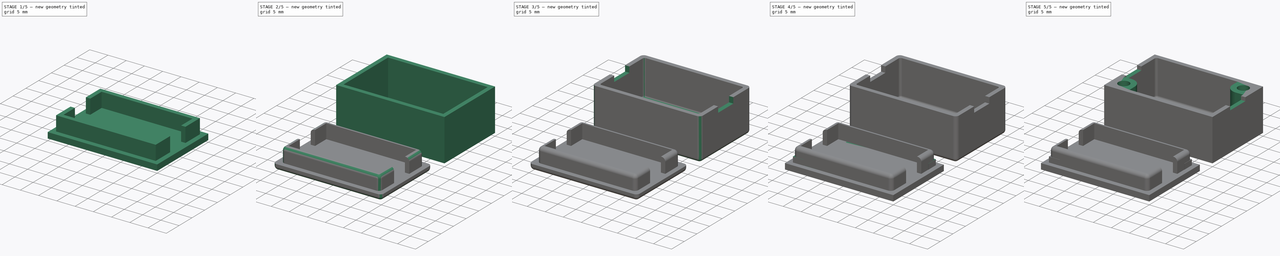
[diagram: build sequence overview — one tinted view per stage of 5, left to right]
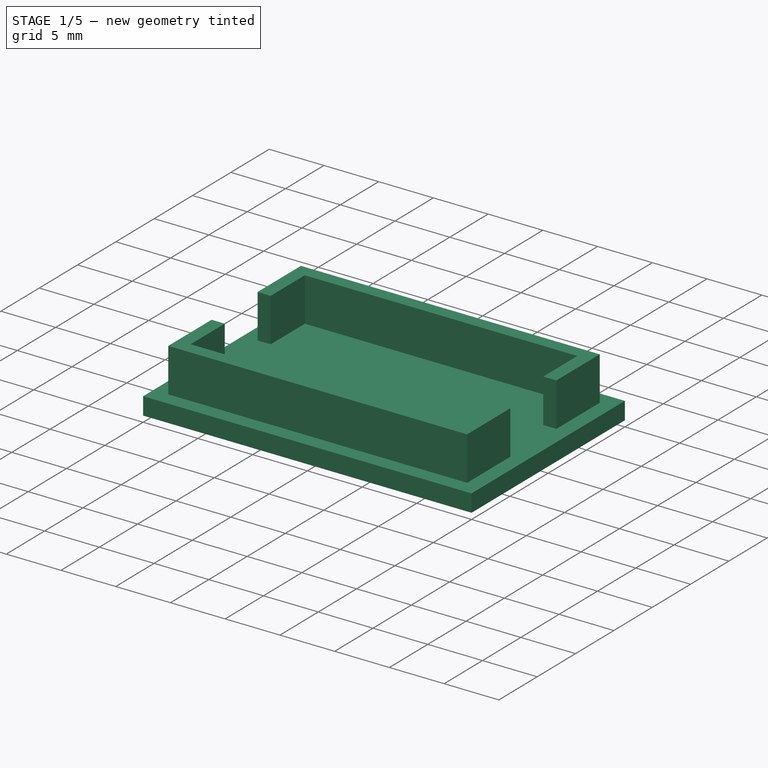
[diagram: stage 1 of 5 — iso view after this stage's code; geometry added in this stage tinted green]
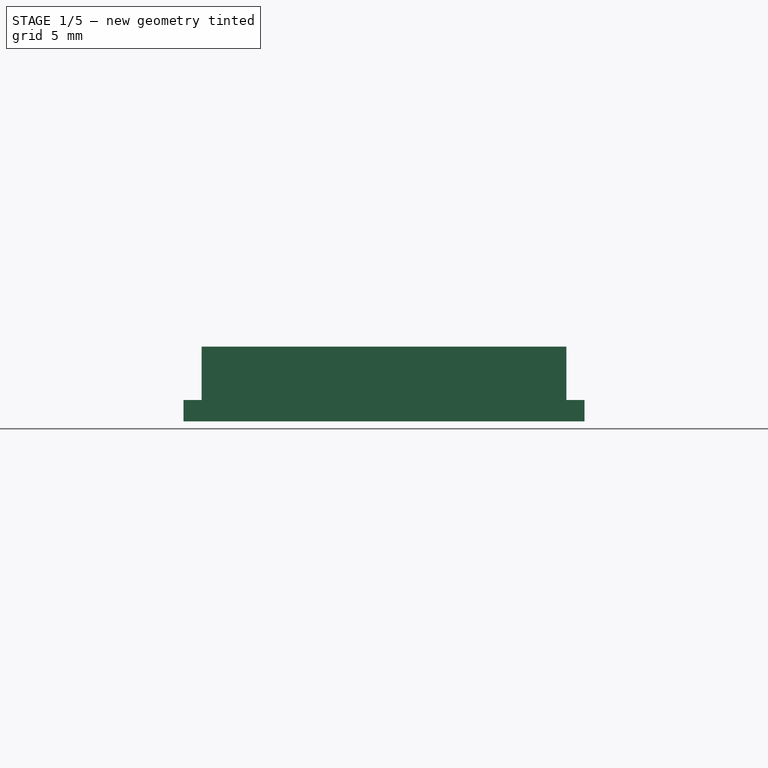
[diagram: stage 1 of 5 — front view after this stage's code; geometry added in this stage tinted green]
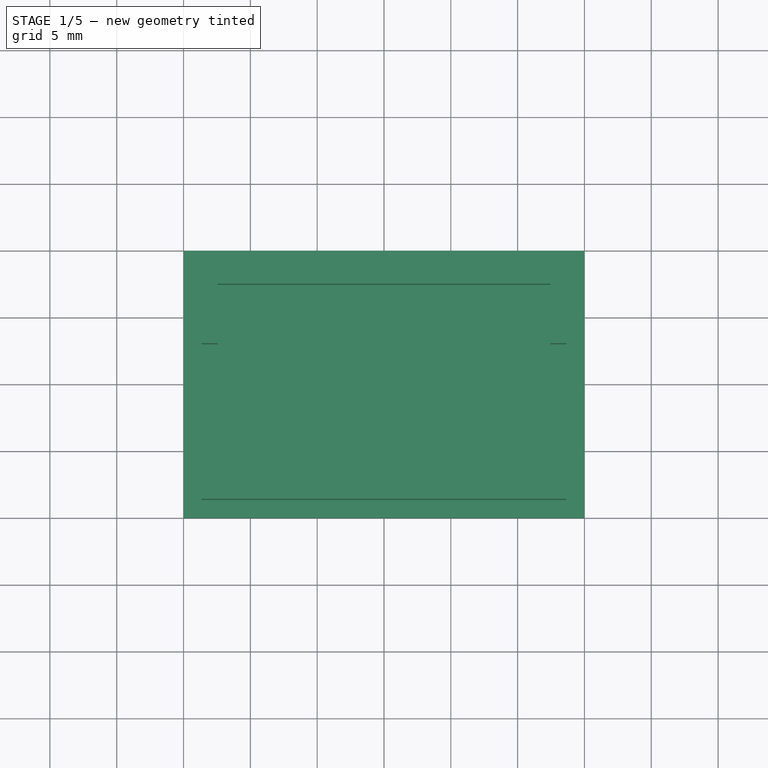
[diagram: stage 1 of 5 — top view after this stage's code; geometry added in this stage tinted green]
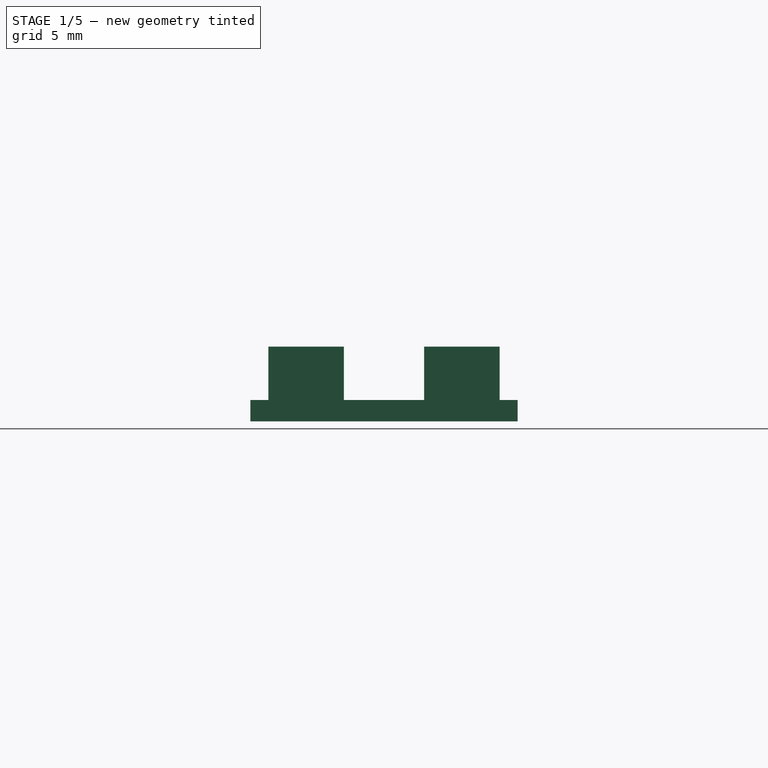
[diagram: stage 1 of 5 — right view after this stage's code; geometry added in this stage tinted green]
FCSTD DOCUMENT  (FreeCAD 0.16R)
Label: smallbox
License: All rights reserved
LicenseURL: http://en.wikipedia.org/wiki/All_rights_reserved
objects: Sketcher::SketchObject×12, PartDesign::Pad×8, App::DocumentObjectGroup×6, PartDesign::Pocket×4, PartDesign::Fillet×3
note: 39 computed .brp shape members not serialized (recipe doc carries the construction recipe); baked Part::Feature solids carry a one-line shape summary decoded from their .brp

FEATURE [Sketcher::SketchObject] Sketch009
  Placement = pos=(0,-25,0) rot=(0,0,1;0rad)
  sketch-geometry (4):
    g0: LineSegment StartX=-15 StartY=10 StartZ=0 EndX=15 EndY=10 EndZ=0
    g1: LineSegment StartX=15 StartY=10 StartZ=0 EndX=15 EndY=-10 EndZ=0
    g2: LineSegment StartX=15 StartY=-10 StartZ=0 EndX=-15 EndY=-10 EndZ=0
    g3: LineSegment StartX=-15 StartY=-10 StartZ=0 EndX=-15 EndY=10 EndZ=0
  constraints (12):
    c: Coincident(g0,g1)
    c: Coincident(g1,g2)
    c: Coincident(g2,g3)
    c: Coincident(g3,g0)
    c: Horizontal(g0)
    c: Horizontal(g2)
    c: Vertical(g1)
    c: Vertical(g3)
    c: Symmetric(g0,g0,g-2)
    c: Symmetric(g0,g2,g-1)
    c: DistanceY(g3,g3) = 20
    c: DistanceX(g0,g0) = 30
FEATURE [PartDesign::Pad] Pad006
  Length = 1.6
  Length2 = 100
  Placement = pos=(0,-25,0) rot=(0,0,1;0rad)
  Sketch = -> Sketch009
  Type = 0
FEATURE [Sketcher::SketchObject] Sketch010
  ExternalGeometry = -> [Pad006]
  Placement = pos=(0,-25,1.6) rot=(0,0,1;0rad)
  Support = -> Pad006 [Face6]
  sketch-geometry (8):
    g0: LineSegment StartX=-13.65 StartY=8.65 StartZ=0 EndX=13.65 EndY=8.65 EndZ=0
    g1: LineSegment StartX=13.65 StartY=8.65 StartZ=0 EndX=13.65 EndY=-8.65 EndZ=0
    g2: LineSegment StartX=13.65 StartY=-8.65 StartZ=0 EndX=-13.65 EndY=-8.65 EndZ=0
    g3: LineSegment StartX=-13.65 StartY=-8.65 StartZ=0 EndX=-13.65 EndY=8.65 EndZ=0
    g4: LineSegment StartX=-12.45 StartY=7.45 StartZ=0 EndX=12.45 EndY=7.45 EndZ=0
    g5: LineSegment StartX=12.45 StartY=7.45 StartZ=0 EndX=12.45 EndY=-7.45 EndZ=0
    g6: LineSegment StartX=12.45 StartY=-7.45 StartZ=0 EndX=-12.45 EndY=-7.45 EndZ=0
    g7: LineSegment StartX=-12.45 StartY=-7.45 StartZ=0 EndX=-12.45 EndY=7.45 EndZ=0
  constraints (24):
    c: Coincident(g0,g1)
    c: Coincident(g1,g2)
    c: Coincident(g2,g3)
    c: Coincident(g3,g0)
    c: Horizontal(g0)
    c: Horizontal(g2)
    c: Vertical(g1)
    c: Vertical(g3)
    c: Symmetric(g0,g0,g-2)
    c: Symmetric(g0,g2,g-1)
    c: DistanceX(g-3,g0) = 1.35
    c: DistanceY(g0,g-3) = 1.35
    c: Coincident(g4,g5)
    c: Coincident(g5,g6)
    c: Coincident(g6,g7)
    c: Coincident(g7,g4)
    c: Horizontal(g4)
    c: Horizontal(g6)
    c: Vertical(g5)
    c: Vertical(g7)
    c: DistanceX(g0,g4) = 1.2
    c: DistanceY(g4,g0) = 1.2
    c: Symmetric(g4,g4,g-2)
    c: Symmetric(g4,g6,g-1)
FEATURE [PartDesign::Pad] Pad007
  Length = 4
  Length2 = 100
  Placement = pos=(0,-25,0) rot=(0,0,1;0rad)
  Sketch = -> Sketch010
  Type = 0
FEATURE [App::DocumentObjectGroup] Group004  label="Bottom001"
  Group = -> [Pad004,Pad005,Pocket004,Fillet,Fillet001]
FEATURE [Sketcher::SketchObject] Sketch013
  ExternalGeometry = -> [Pad007]
  Placement = pos=(-13.65,-25,0) rot=(0.57735,-0.57735,-0.57735;2.0944rad)
  Support = -> Pad007 [Face8]
  sketch-geometry (4):
    g0: LineSegment StartX=-3 StartY=5.6 StartZ=0 EndX=3 EndY=5.6 EndZ=0
    g1: LineSegment StartX=3 StartY=5.6 StartZ=0 EndX=3 EndY=1.6 EndZ=0
    g2: LineSegment StartX=3 StartY=1.6 StartZ=0 EndX=-3 EndY=1.6 EndZ=0
    g3: LineSegment StartX=-3 StartY=1.6 StartZ=0 EndX=-3 EndY=5.6 EndZ=0
  constraints (12):
    c: Coincident(g0,g1)
    c: Coincident(g1,g2)
    c: Coincident(g2,g3)
    c: Coincident(g3,g0)
    c: Horizontal(g0)
    c: Horizontal(g2)
    c: Vertical(g1)
    c: Vertical(g3)
    c: PointOnObject(g0,g-3)
    c: PointOnObject(g1,g-4)
    c: Symmetric(g0,g0,g-2)
    c: DistanceX(g0,g0) = 6
FEATURE [PartDesign::Pocket] Pocket005
  Length = 5
  Placement = pos=(0,-25,0) rot=(0,0,1;0rad)
  Sketch = -> Sketch013
  Type = 1
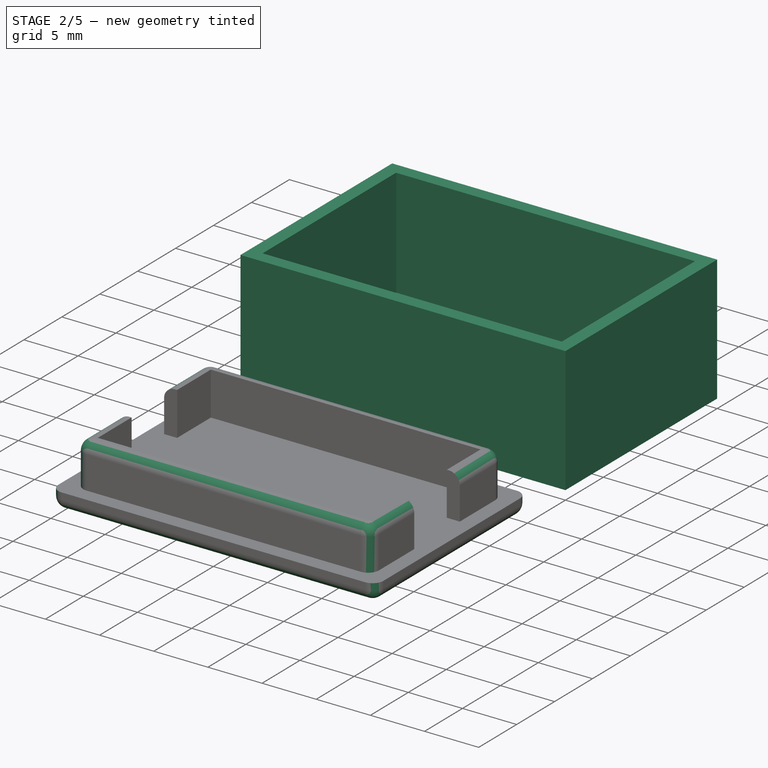
[diagram: stage 2 of 5 — iso view after this stage's code; geometry added in this stage tinted green]
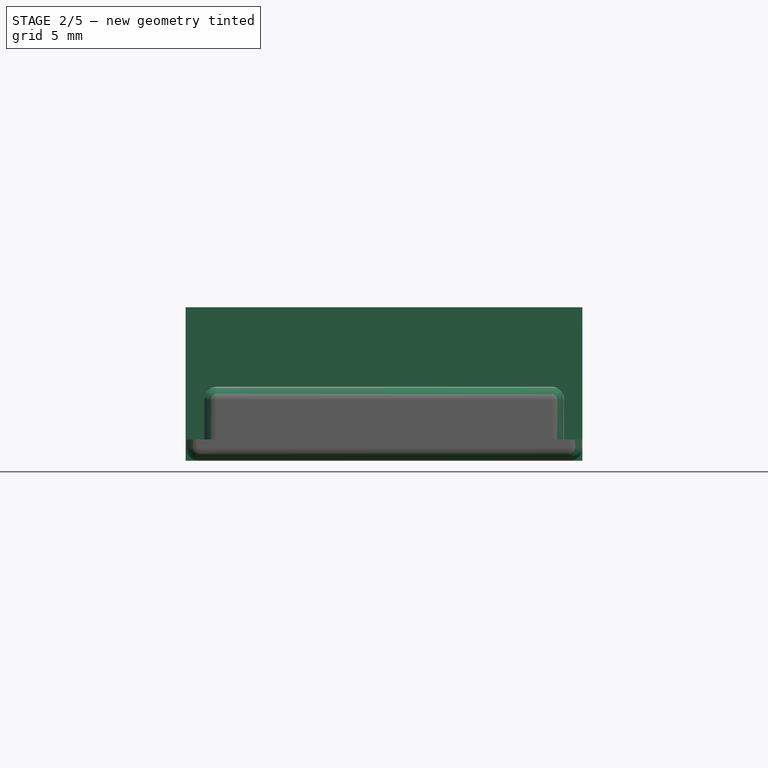
[diagram: stage 2 of 5 — front view after this stage's code; geometry added in this stage tinted green]
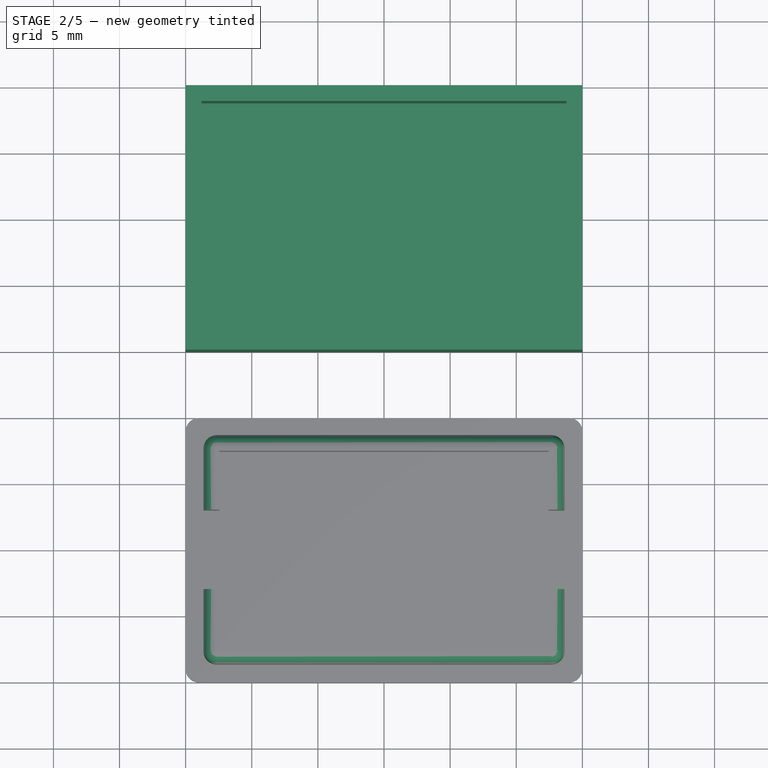
[diagram: stage 2 of 5 — top view after this stage's code; geometry added in this stage tinted green]
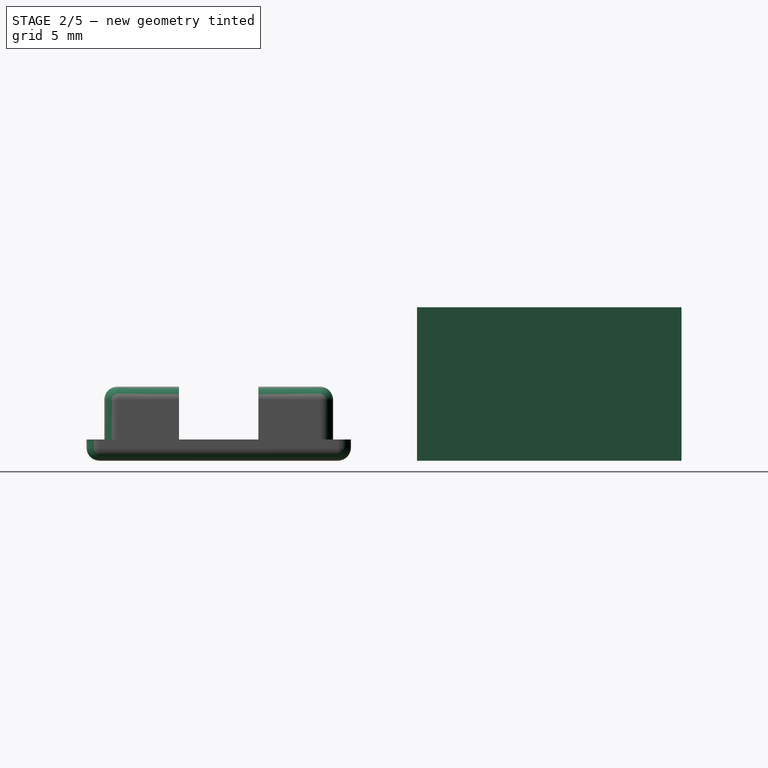
[diagram: stage 2 of 5 — right view after this stage's code; geometry added in this stage tinted green]
FEATURE [App::DocumentObjectGroup] Group001  label="Top"
  Group = -> [Pad002,Pad003,Pocket001]
FEATURE [App::DocumentObjectGroup] Group002  label="V1"
  Group = -> [Group,Group001]
FEATURE [Sketcher::SketchObject] Sketch006
  sketch-geometry (4):
    g0: LineSegment StartX=-15 StartY=10 StartZ=0 EndX=15 EndY=10 EndZ=0
    g1: LineSegment StartX=15 StartY=10 StartZ=0 EndX=15 EndY=-10 EndZ=0
    g2: LineSegment StartX=15 StartY=-10 StartZ=0 EndX=-15 EndY=-10 EndZ=0
    g3: LineSegment StartX=-15 StartY=-10 StartZ=0 EndX=-15 EndY=10 EndZ=0
  constraints (12):
    c: Coincident(g0,g1)
    c: Coincident(g1,g2)
    c: Coincident(g2,g3)
    c: Coincident(g3,g0)
    c: Horizontal(g0)
    c: Horizontal(g2)
    c: Vertical(g1)
    c: Vertical(g3)
    c: Symmetric(g0,g0,g-2)
    c: Symmetric(g2,g0,g-1)
    c: DistanceY(g3,g3) = 20
    c: DistanceX(g0,g0) = 30
FEATURE [PartDesign::Pad] Pad004
  Length = 1.6
  Length2 = 100
  Sketch = -> Sketch006
  Type = 0
FEATURE [Sketcher::SketchObject] Sketch007
  ExternalGeometry = -> [Pad004]
  Placement = pos=(0,0,1.6) rot=(0,0,1;0rad)
  Support = -> Pad004 [Face6]
  sketch-geometry (8):
    g0: LineSegment StartX=-15 StartY=10 StartZ=0 EndX=15 EndY=10 EndZ=0
    g1: LineSegment StartX=15 StartY=10 StartZ=0 EndX=15 EndY=-10 EndZ=0
    g2: LineSegment StartX=15 StartY=-10 StartZ=0 EndX=-15 EndY=-10 EndZ=0
    g3: LineSegment StartX=-15 StartY=-10 StartZ=0 EndX=-15 EndY=10 EndZ=0
    g4: LineSegment StartX=-13.8 StartY=-8.8 StartZ=0 EndX=-13.8 EndY=8.8 EndZ=0
    g5: LineSegment StartX=13.8 StartY=-8.8 StartZ=0 EndX=-13.8 EndY=-8.8 EndZ=0
    g6: LineSegment StartX=-13.8 StartY=8.8 StartZ=0 EndX=13.8 EndY=8.8 EndZ=0
    g7: LineSegment StartX=13.8 StartY=8.8 StartZ=0 EndX=13.8 EndY=-8.8 EndZ=0
  constraints (22):
    c: Coincident(g0,g1)
    c: Coincident(g1,g2)
    c: Coincident(g2,g3)
    c: Coincident(g3,g0)
    c: Horizontal(g0)
    c: Horizontal(g2)
    c: Vertical(g1)
    c: Vertical(g3)
    c: Coincident(g0,g-3)
    c: Coincident(g1,g-4)
    c: Vertical(g4)
    c: DistanceX(g0,g4) = 1.2
    c: DistanceY(g4,g0) = 1.2
    c: DistanceY(g1,g5) = 1.2
    c: DistanceX(g5,g1) = 1.2
    c: Horizontal(g5)
    c: Coincident(g4,g6)
    c: Horizontal(g6)
    c: Coincident(g7,g5)
    c: Vertical(g7)
    c: Coincident(g6,g7)
    c: Coincident(g4,g5)
FEATURE [PartDesign::Pad] Pad005
  Length = 10
  Length2 = 100
  Sketch = -> Sketch007
  Type = 0
FEATURE [PartDesign::Fillet] Fillet002
  Base = -> Pocket005 [Edge30,Edge29,Edge26,Edge40,Edge39,Edge36,Edge37,Edge28,Edge38,Edge1,Edge6,Edge5,Edge13,Edge10,Edge8,Edge2,Edge27,Edge3]
  Placement = pos=(0,-25,0) rot=(0,0,1;0rad)
  Radius = 1
FEATURE [App::DocumentObjectGroup] Group005  label="Top001"
  Group = -> [Pad006,Pad007,Pocket005,Fillet002]
FEATURE [App::DocumentObjectGroup] Group003  label="V2"
  Group = -> [Group004,Group005]
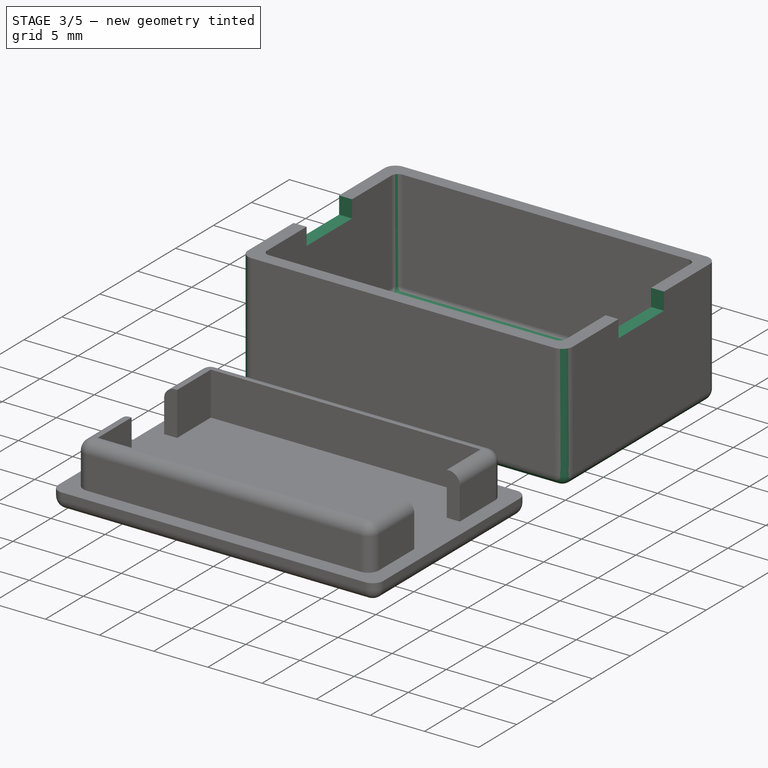
[diagram: stage 3 of 5 — iso view after this stage's code; geometry added in this stage tinted green]
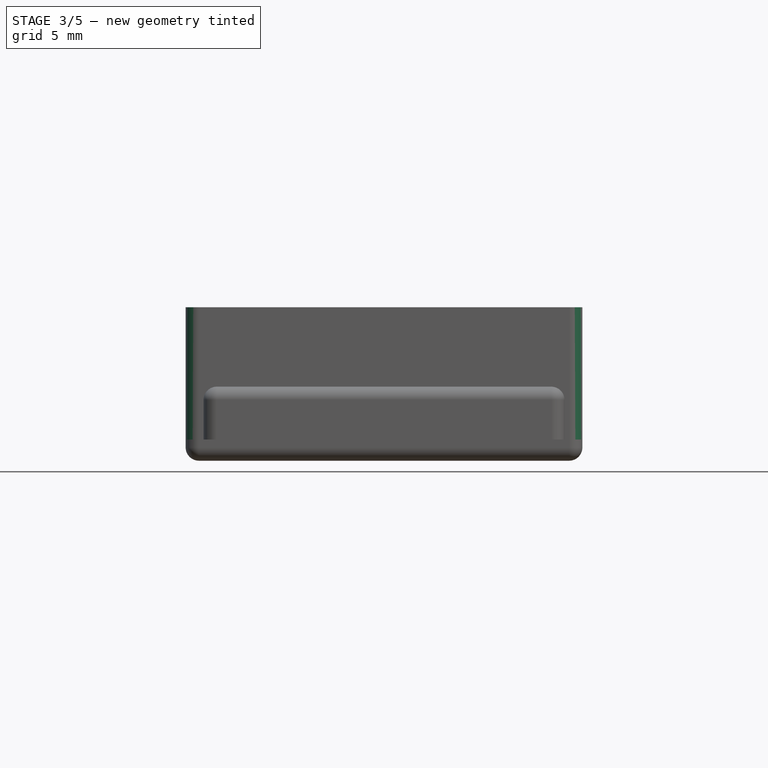
[diagram: stage 3 of 5 — front view after this stage's code; geometry added in this stage tinted green]
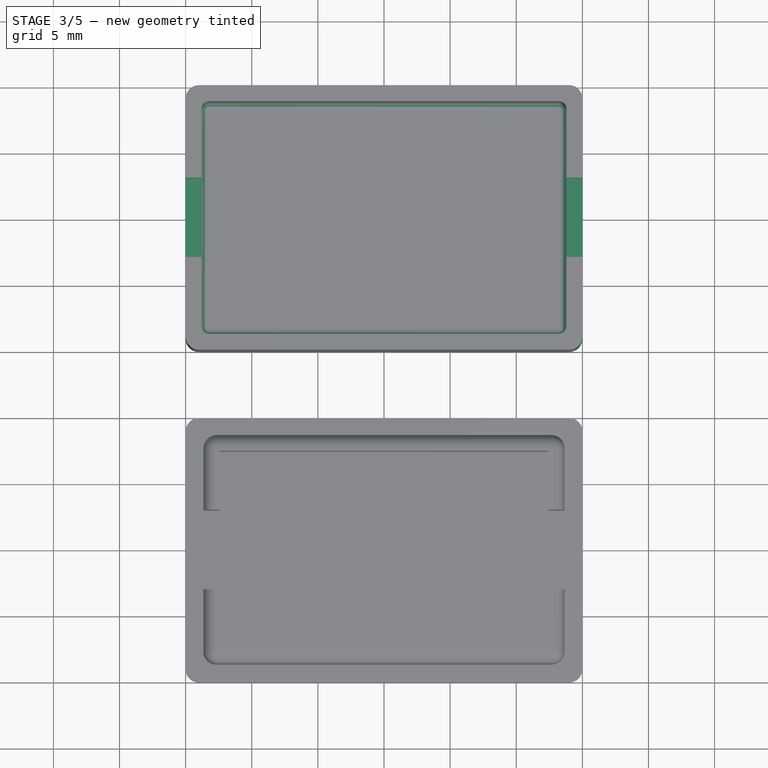
[diagram: stage 3 of 5 — top view after this stage's code; geometry added in this stage tinted green]
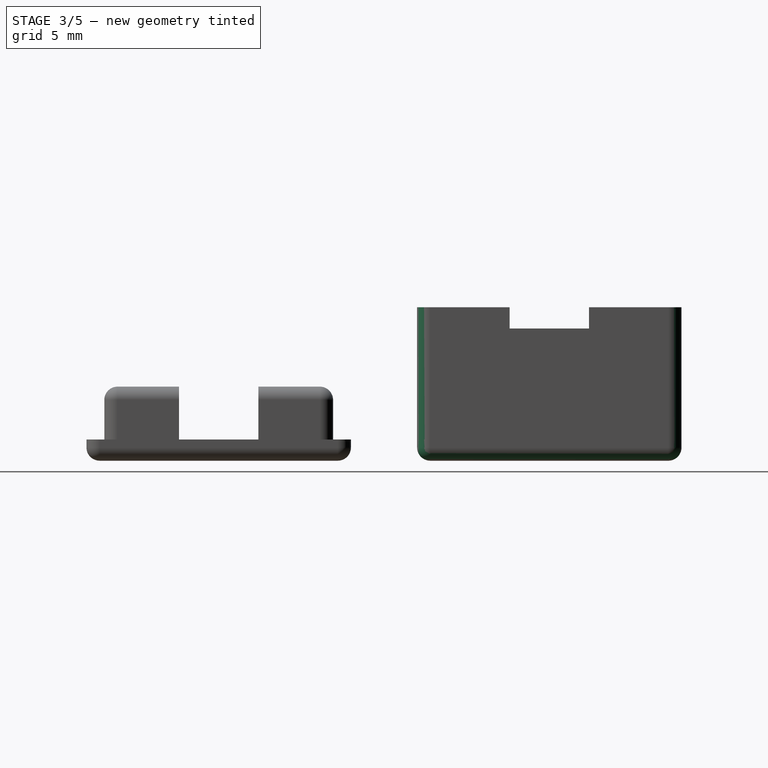
[diagram: stage 3 of 5 — right view after this stage's code; geometry added in this stage tinted green]
FEATURE [Sketcher::SketchObject] Sketch012
  ExternalGeometry = -> [Pad005]
  Placement = pos=(15,0,0) rot=(0.57735,0.57735,0.57735;2.0944rad)
  Support = -> Pad005 [Face7]
  sketch-geometry (4):
    g0: LineSegment StartX=-3 StartY=11.6 StartZ=0 EndX=3 EndY=11.6 EndZ=0
    g1: LineSegment StartX=3 StartY=11.6 StartZ=0 EndX=3 EndY=10 EndZ=0
    g2: LineSegment StartX=3 StartY=10 StartZ=0 EndX=-3 EndY=10 EndZ=0
    g3: LineSegment StartX=-3 StartY=10 StartZ=0 EndX=-3 EndY=11.6 EndZ=0
  constraints (12):
    c: Coincident(g0,g1)
    c: Coincident(g1,g2)
    c: Coincident(g2,g3)
    c: Coincident(g3,g0)
    c: Horizontal(g0)
    c: Horizontal(g2)
    c: Vertical(g1)
    c: Vertical(g3)
    c: PointOnObject(g0,g-3)
    c: Symmetric(g0,g0,g-2)
    c: DistanceX(g0,g0) = 6
    c: DistanceY(g3,g3) = 1.6
FEATURE [PartDesign::Pocket] Pocket004
  Length = 5
  Sketch = -> Sketch012
  Type = 1
FEATURE [PartDesign::Fillet] Fillet
  Base = -> Pocket004 [Edge50,Edge56,Edge49,Edge51,Edge53,Edge52,Edge54,Edge55]
  Radius = 0.6
FEATURE [PartDesign::Fillet] Fillet001
  Base = -> Fillet [Edge64,Edge70,Edge63,Edge29,Edge32,Edge69,Edge65,Edge25,Edge82,Edge76,Edge45,Edge77]
  Radius = 1
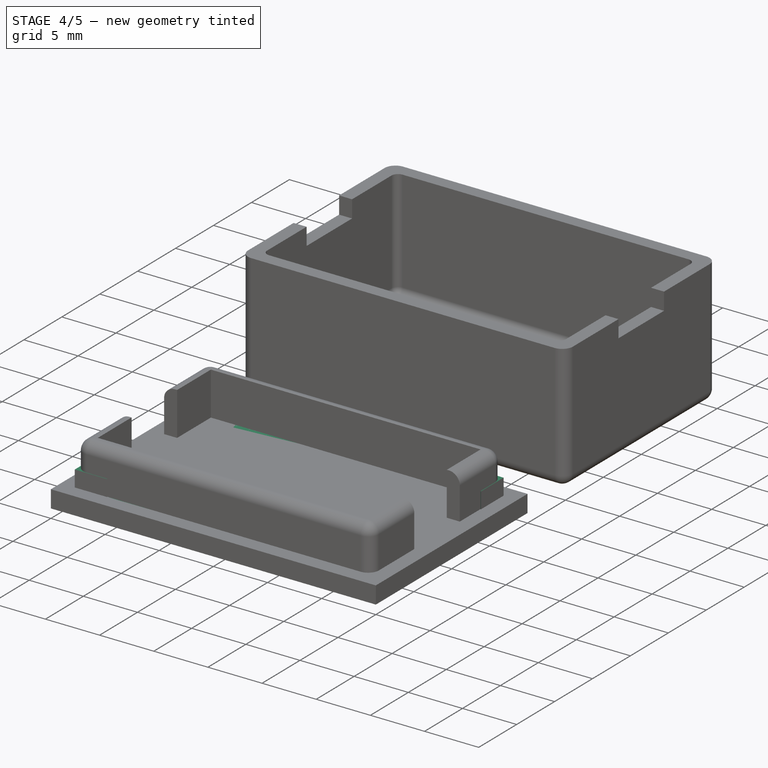
[diagram: stage 4 of 5 — iso view after this stage's code; geometry added in this stage tinted green]
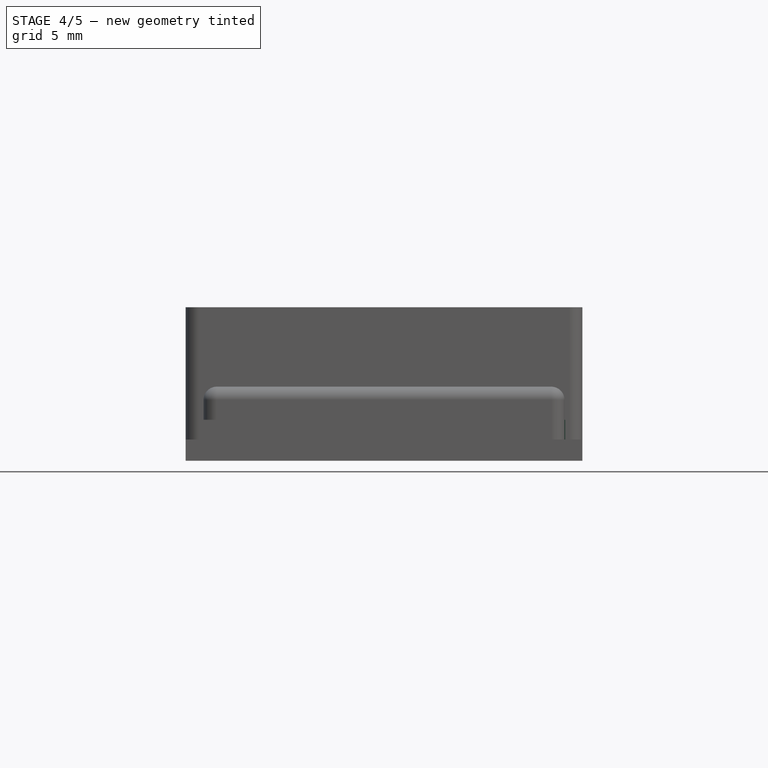
[diagram: stage 4 of 5 — front view after this stage's code; geometry added in this stage tinted green]
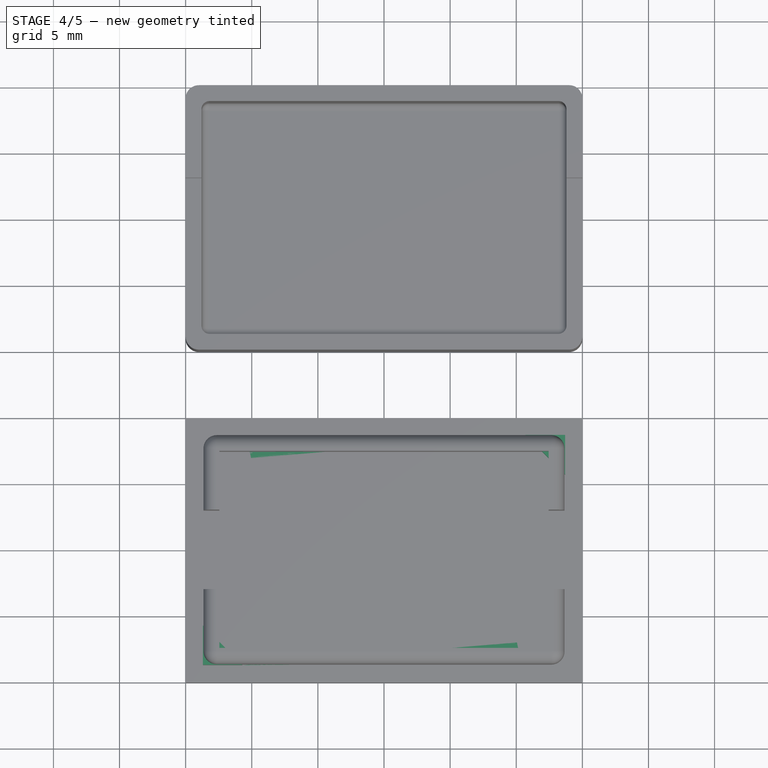
[diagram: stage 4 of 5 — top view after this stage's code; geometry added in this stage tinted green]
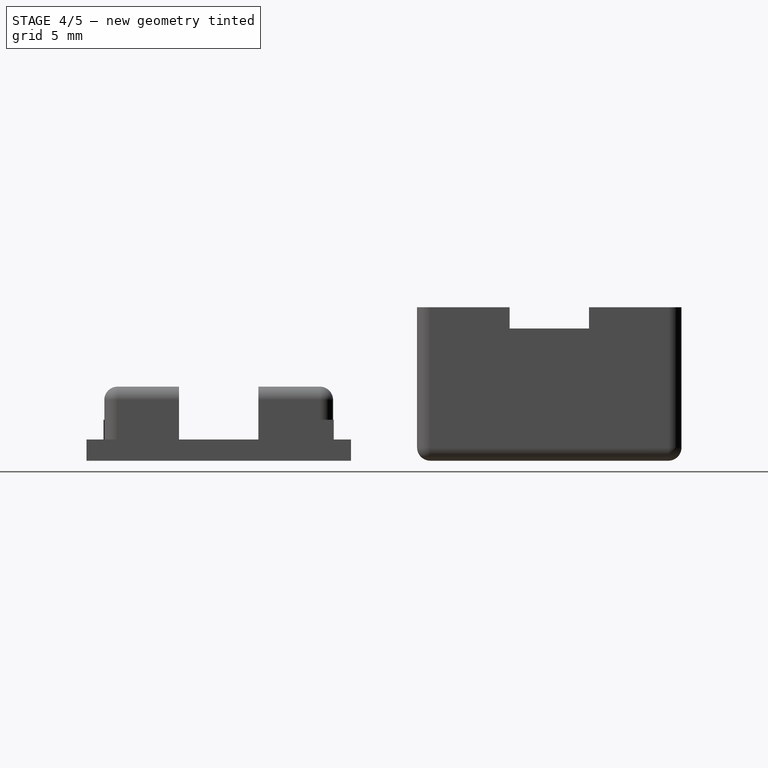
[diagram: stage 4 of 5 — right view after this stage's code; geometry added in this stage tinted green]
FEATURE [App::DocumentObjectGroup] Group  label="Bottom"
  Group = -> [Pad,Pad001,Pocket]
FEATURE [Sketcher::SketchObject] Sketch003
  Placement = pos=(0,-25,0) rot=(0,0,1;0rad)
  sketch-geometry (4):
    g0: LineSegment StartX=-15 StartY=10 StartZ=0 EndX=15 EndY=10 EndZ=0
    g1: LineSegment StartX=15 StartY=10 StartZ=0 EndX=15 EndY=-10 EndZ=0
    g2: LineSegment StartX=15 StartY=-10 StartZ=0 EndX=-15 EndY=-10 EndZ=0
    g3: LineSegment StartX=-15 StartY=-10 StartZ=0 EndX=-15 EndY=10 EndZ=0
  constraints (12):
    c: Coincident(g0,g1)
    c: Coincident(g1,g2)
    c: Coincident(g2,g3)
    c: Coincident(g3,g0)
    c: Horizontal(g0)
    c: Horizontal(g2)
    c: Vertical(g1)
    c: Vertical(g3)
    c: Symmetric(g0,g0,g-2)
    c: Symmetric(g0,g2,g-1)
    c: DistanceY(g3,g3) = 20
    c: DistanceX(g0,g0) = 30
FEATURE [PartDesign::Pad] Pad002
  Length = 1.6
  Length2 = 100
  Placement = pos=(0,-25,0) rot=(0,0,1;0rad)
  Sketch = -> Sketch003
  Type = 0
FEATURE [Sketcher::SketchObject] Sketch004
  ExternalGeometry = -> [Pad002]
  Placement = pos=(0,-25,1.6) rot=(0,0,1;0rad)
  Support = -> Pad002 [Face6]
  sketch-geometry (6):
    g0: LineSegment StartX=13.7 StartY=8.7 StartZ=0 EndX=10.7 EndY=8.7 EndZ=0
    g1: LineSegment StartX=10.7 StartY=8.7 StartZ=0 EndX=13.7 EndY=5.7 EndZ=0
    g2: LineSegment StartX=13.7 StartY=5.7 StartZ=0 EndX=13.7 EndY=8.7 EndZ=0
    g3: LineSegment StartX=-13.7 StartY=-8.7 StartZ=0 EndX=-10.7 EndY=-8.7 EndZ=0
    g4: LineSegment StartX=-10.7 StartY=-8.7 StartZ=0 EndX=-13.7 EndY=-5.7 EndZ=0
    g5: LineSegment StartX=-13.7 StartY=-5.7 StartZ=0 EndX=-13.7 EndY=-8.7 EndZ=0
  constraints (18):
    c: Horizontal(g0)
    c: Coincident(g0,g1)
    c: Coincident(g1,g2)
    c: Coincident(g2,g0)
    c: Vertical(g2)
    c: Horizontal(g3)
    c: Coincident(g3,g4)
    c: Coincident(g4,g5)
    c: Coincident(g5,g3)
    c: Vertical(g5)
    c: DistanceY(g-4,g3) = 1.3
    c: DistanceX(g-4,g3) = 1.3
    c: DistanceY(g0,g-3) = 1.3
    c: DistanceX(g0,g-3) = 1.3
    c: Equal(g3,g5)
    c: Equal(g5,g0)
    c: Equal(g0,g2)
    c: DistanceX(g3,g3) = 3
FEATURE [PartDesign::Pad] Pad003
  Length = 1.5
  Length2 = 100
  Placement = pos=(0,-25,0) rot=(0,0,1;0rad)
  Sketch = -> Sketch004
  Type = 0
FEATURE [Sketcher::SketchObject] Sketch005
  ExternalGeometry = -> [Pad003]
  Placement = pos=(0,-25,1.6) rot=(0,0,1;0rad)
  Support = -> Pad003 [Face5]
  sketch-geometry (2):
    g0: Circle CenterX=-11.8 CenterY=6.8 CenterZ=0 NormalX=0 NormalY=0 NormalZ=1 Radius=1.75
    g1: Circle CenterX=11.8 CenterY=-6.8 CenterZ=0 NormalX=0 NormalY=0 NormalZ=1 Radius=1.75
  constraints (6):
    c: DistanceX(g-3,g0) = 3.2
    c: DistanceY(g0,g-3) = 3.2
    c: DistanceX(g1,g-4) = 3.2
    c: DistanceY(g-4,g1) = 3.2
    c: Equal(g0,g1)
    c: Radius(g0) = 1.75
FEATURE [PartDesign::Pocket] Pocket001
  Length = 5
  Placement = pos=(0,-25,0) rot=(0,0,1;0rad)
  Sketch = -> Sketch005
  Type = 2
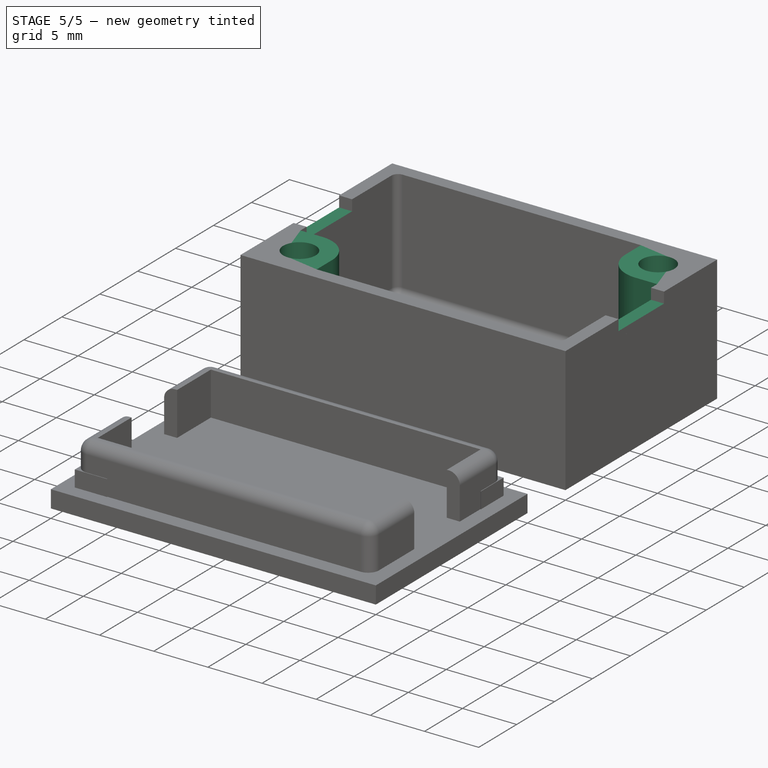
[diagram: stage 5 of 5 — iso view after this stage's code; geometry added in this stage tinted green]
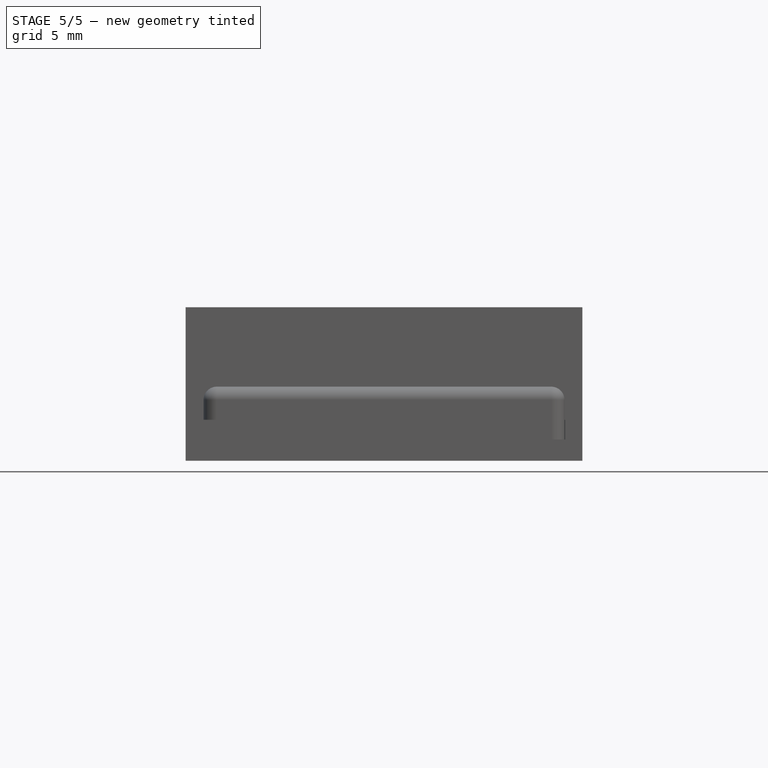
[diagram: stage 5 of 5 — front view after this stage's code; geometry added in this stage tinted green]
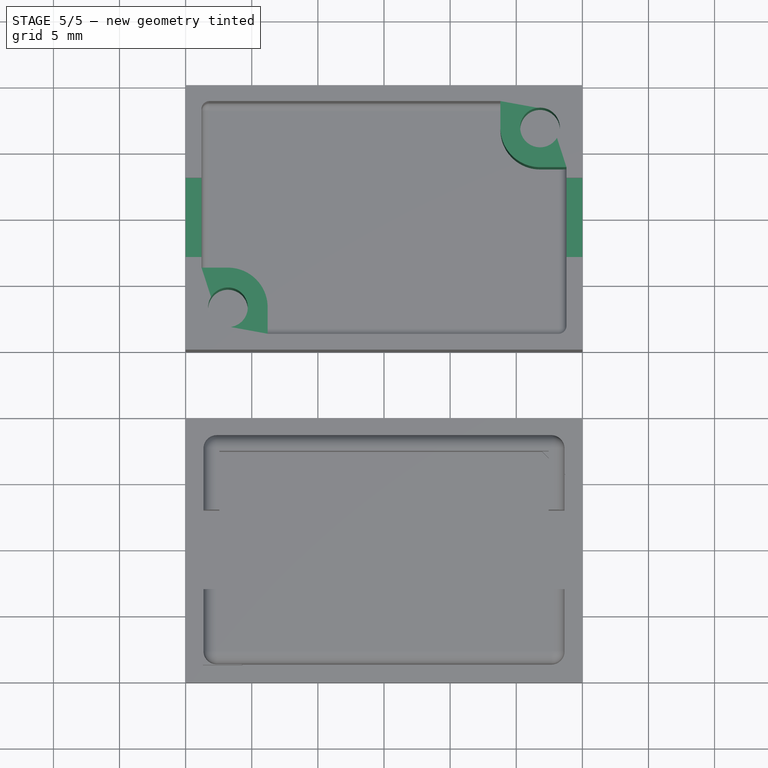
[diagram: stage 5 of 5 — top view after this stage's code; geometry added in this stage tinted green]
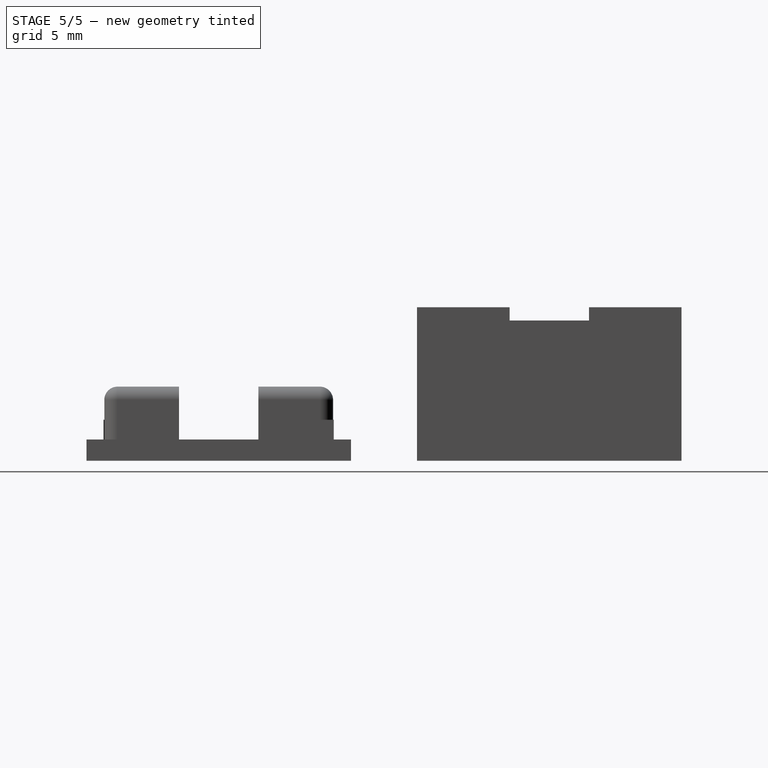
[diagram: stage 5 of 5 — right view after this stage's code; geometry added in this stage tinted green]
FEATURE [Sketcher::SketchObject] Sketch
  sketch-geometry (4):
    g0: LineSegment StartX=-15 StartY=10 StartZ=0 EndX=15 EndY=10 EndZ=0
    g1: LineSegment StartX=15 StartY=10 StartZ=0 EndX=15 EndY=-10 EndZ=0
    g2: LineSegment StartX=15 StartY=-10 StartZ=0 EndX=-15 EndY=-10 EndZ=0
    g3: LineSegment StartX=-15 StartY=-10 StartZ=0 EndX=-15 EndY=10 EndZ=0
  constraints (12):
    c: Coincident(g0,g1)
    c: Coincident(g1,g2)
    c: Coincident(g2,g3)
    c: Coincident(g3,g0)
    c: Horizontal(g0)
    c: Horizontal(g2)
    c: Vertical(g1)
    c: Vertical(g3)
    c: Symmetric(g0,g0,g-2)
    c: Symmetric(g2,g0,g-1)
    c: DistanceY(g3,g3) = 20
    c: DistanceX(g0,g0) = 30
FEATURE [PartDesign::Pad] Pad
  Length = 1.6
  Length2 = 100
  Sketch = -> Sketch
  Type = 0
FEATURE [Sketcher::SketchObject] Sketch001
  ExternalGeometry = -> [Pad]
  Placement = pos=(0,0,1.6) rot=(0,0,1;0rad)
  Support = -> Pad [Face6]
  sketch-geometry (20):
    g0: LineSegment StartX=-15 StartY=10 StartZ=0 EndX=15 EndY=10 EndZ=0
    g1: LineSegment StartX=15 StartY=10 StartZ=0 EndX=15 EndY=-10 EndZ=0
    g2: LineSegment StartX=15 StartY=-10 StartZ=0 EndX=-15 EndY=-10 EndZ=0
    g3: LineSegment StartX=-15 StartY=-10 StartZ=0 EndX=-15 EndY=10 EndZ=0
    g4: LineSegment StartX=-13.8 StartY=-3.8 StartZ=0 EndX=-13.8 EndY=8.8 EndZ=0
    g5: LineSegment StartX=13.8 StartY=-8.8 StartZ=0 EndX=-8.8 EndY=-8.8 EndZ=0
    g6: LineSegment StartX=-13.8 StartY=-3.8 StartZ=0 EndX=-11.8 EndY=-3.8 EndZ=0
    g7: LineSegment StartX=-8.8 StartY=-8.8 StartZ=0 EndX=-8.8 EndY=-6.8 EndZ=0
    g8: LineSegment [constr] StartX=-11.8 StartY=-3.8 StartZ=0 EndX=-11.8 EndY=-6.8 EndZ=0
    g9: LineSegment [constr] StartX=-11.8 StartY=-6.8 StartZ=0 EndX=-8.8 EndY=-6.8 EndZ=0
    g10: ArcOfCircle CenterX=-11.8 CenterY=-6.8 CenterZ=0 NormalX=0 NormalY=0 NormalZ=1 Radius=3 StartAngle=0 EndAngle=1.5708
    g11: LineSegment StartX=-13.8 StartY=8.8 StartZ=0 EndX=8.8 EndY=8.8 EndZ=0
    g12: LineSegment StartX=8.8 StartY=8.8 StartZ=0 EndX=8.8 EndY=6.8 EndZ=0
    g13: LineSegment StartX=11.8 StartY=3.8 StartZ=0 EndX=13.8 EndY=3.8 EndZ=0
    g14: LineSegment StartX=13.8 StartY=3.8 StartZ=0 EndX=13.8 EndY=-8.8 EndZ=0
    g15: LineSegment [constr] StartX=8.8 StartY=6.8 StartZ=0 EndX=11.8 EndY=6.8 EndZ=0
    g16: LineSegment [constr] StartX=11.8 StartY=6.8 StartZ=0 EndX=11.8 EndY=3.8 EndZ=0
    g17: ArcOfCircle CenterX=11.8 CenterY=6.8 CenterZ=0 NormalX=0 NormalY=0 NormalZ=1 Radius=3 StartAngle=3.14159 EndAngle=4.71239
    g18: Circle CenterX=-11.8 CenterY=-6.8 CenterZ=0 NormalX=0 NormalY=0 NormalZ=1 Radius=1.5
    g19: Circle CenterX=11.8 CenterY=6.8 CenterZ=0 NormalX=0 NormalY=0 NormalZ=1 Radius=1.5
  constraints (57):
    c: Coincident(g0,g1)
    c: Coincident(g1,g2)
    c: Coincident(g2,g3)
    c: Coincident(g3,g0)
    c: Horizontal(g0)
    c: Horizontal(g2)
    c: Vertical(g1)
    c: Vertical(g3)
    c: Coincident(g0,g-3)
    c: Coincident(g1,g-4)
    c: Vertical(g4)
    c: DistanceX(g0,g4) = 1.2
    c: DistanceY(g4,g0) = 1.2
    c: DistanceY(g1,g5) = 1.2
    c: DistanceX(g5,g1) = 1.2
    c: Horizontal(g5)
    c: Coincident(g6,g4)
    c: Horizontal(g6)
    c: Coincident(g7,g5)
    c: Vertical(g7)
    c: Coincident(g6,g8)
    c: Vertical(g8)
    c: Coincident(g8,g9)
    c: Coincident(g9,g7)
    c: Horizontal(g9)
    c: Coincident(g10,g8)
    c: Coincident(g10,g6)
    c: Coincident(g10,g7)
    c: Equal(g6,g7)
    c: Radius(g10) = 3
    c: DistanceX(g6,g6) = 2
    c: Coincident(g4,g11)
    c: Horizontal(g11)
    c: Coincident(g11,g12)
    c: Vertical(g12)
    c: Horizontal(g13)
    c: Coincident(g13,g14)
    c: Coincident(g14,g5)
    c: Vertical(g14)
    c: Equal(g9,g8)
    c: Equal(g13,g12)
    c: Coincident(g12,g15)
    c: Horizontal(g15)
    c: Coincident(g15,g16)
    c: Coincident(g16,g13)
    c: Vertical(g16)
    c: Equal(g15,g16)
    c: Coincident(g17,g15)
    c: Coincident(g17,g12)
    c: Coincident(g17,g13)
    c: Equal(g10,g17)
    c: Equal(g12,g6)
    c: Equal(g6,g7)
    c: Coincident(g18,g8)
    c: Radius(g18) = 1.5
    c: Coincident(g19,g15)
    c: Equal(g18,g19)
FEATURE [PartDesign::Pad] Pad001
  Length = 10
  Length2 = 100
  Sketch = -> Sketch001
  Type = 0
FEATURE [Sketcher::SketchObject] Sketch002
  ExternalGeometry = -> [Pad001]
  Placement = pos=(0,0,11.6) rot=(0,0,1;0rad)
  Support = -> Pad001 [Face10]
  sketch-geometry (8):
    g0: LineSegment StartX=-13.8 StartY=-3.8 StartZ=0 EndX=-15 EndY=-3.8 EndZ=0
    g1: LineSegment StartX=-15 StartY=-3.8 StartZ=0 EndX=-15 EndY=3.8 EndZ=0
    g2: LineSegment StartX=-15 StartY=3.8 StartZ=0 EndX=-13.8 EndY=3.8 EndZ=0
    g3: LineSegment StartX=-13.8 StartY=3.8 StartZ=0 EndX=-13.8 EndY=-3.8 EndZ=0
    g4: LineSegment StartX=13.8 StartY=3.8 StartZ=0 EndX=15 EndY=3.8 EndZ=0
    g5: LineSegment StartX=15 StartY=3.8 StartZ=0 EndX=15 EndY=-3.8 EndZ=0
    g6: LineSegment StartX=15 StartY=-3.8 StartZ=0 EndX=13.8 EndY=-3.8 EndZ=0
    g7: LineSegment StartX=13.8 StartY=-3.8 StartZ=0 EndX=13.8 EndY=3.8 EndZ=0
  constraints (22):
    c: Coincident(g0,g1)
    c: Coincident(g1,g2)
    c: Coincident(g2,g3)
    c: Coincident(g3,g0)
    c: Horizontal(g0)
    c: Horizontal(g2)
    c: Vertical(g1)
    c: Vertical(g3)
    c: Coincident(g0,g-4)
    c: PointOnObject(g1,g-3)
    c: Coincident(g4,g5)
    c: Coincident(g5,g6)
    c: Coincident(g6,g7)
    c: Coincident(g7,g4)
    c: Horizontal(g4)
    c: Horizontal(g6)
    c: Vertical(g5)
    c: Vertical(g7)
    c: Coincident(g4,g-5)
    c: PointOnObject(g5,g-6)
    c: Symmetric(g4,g6,g-1)
    c: Symmetric(g0,g2,g-1)
FEATURE [PartDesign::Pocket] Pocket
  Length = 1
  Sketch = -> Sketch002
  Type = 0
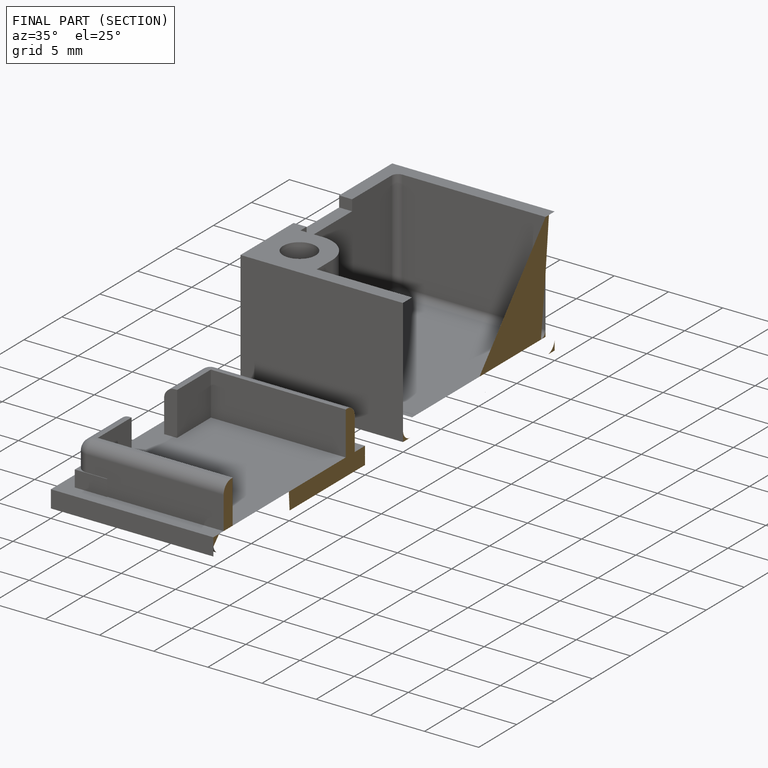
[diagram: finished part — half-section view (interior)]
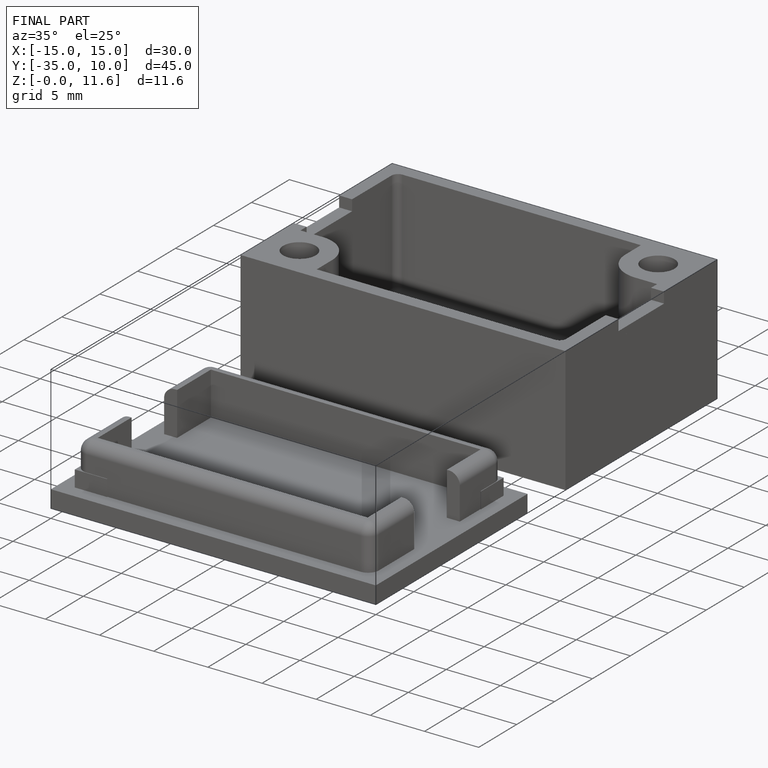
[diagram: finished part — iso view with bounding-box wireframe]
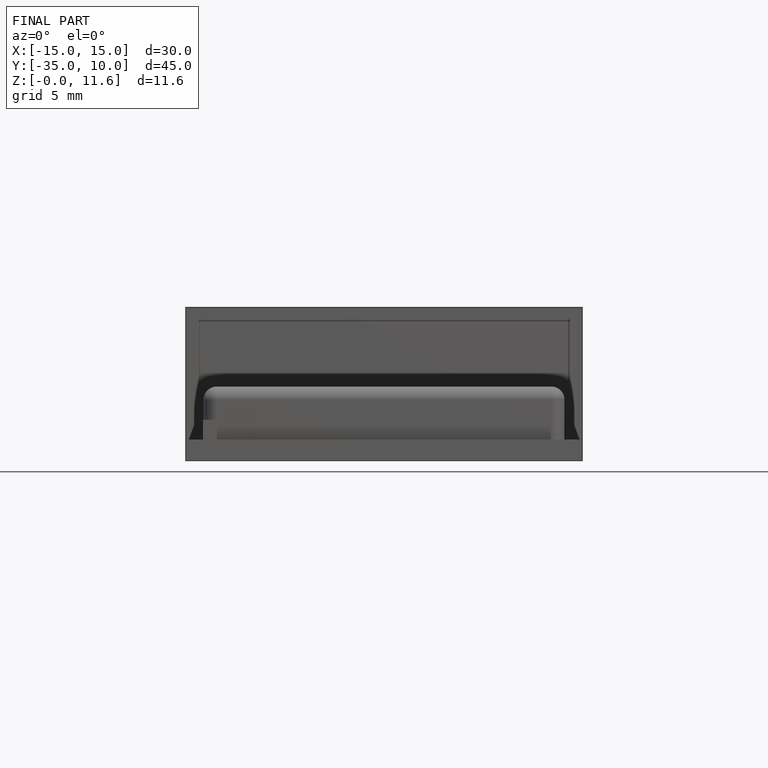
[diagram: finished part — front view with bounding-box wireframe]
